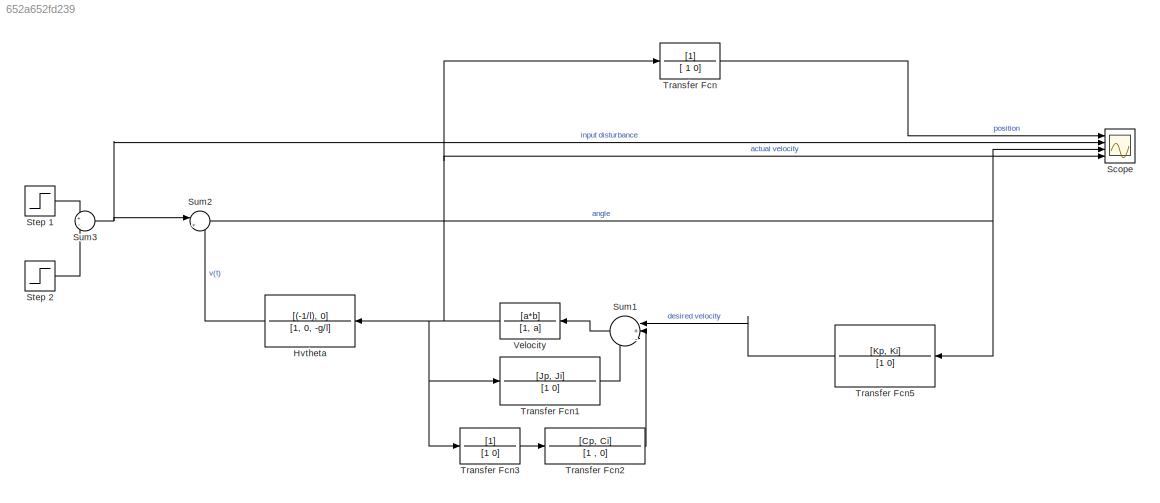
MODEL slx_652a652fd239
KIND model
CONFIG AbsTol = auto
CONFIG EnableMultiTasking = off
CONFIG FixedStep = auto
CONFIG MaxStep = auto
CONFIG MinStep = auto
CONFIG RelTol = 1e-3
CONFIG SampleTimeConstraint = Unconstrained
CONFIG SolverName = VariableStepAuto
CONFIG StartTime = 0.0
CONFIG StopTime = 10.0
BLOCK [TransferFcn] Hvtheta
  Denominator = [1, 0, -g/l]
  Numerator = [(-1/l), 0]
BLOCK [Scope] Scope
  Floating = off
  NumInputPorts = 4
  Ports = [4]
  ScopeSpecificationString = Simulink.scopes.TimeScopeBlockCfg('CurrentConfiguration', extmgr.ConfigurationSet(extmgr.Configuration('Core','General UI',true),extmgr.Configuration('Core','Source UI',true),extmgr.Configuration('Sources','WiredSimulink',true),extmgr.Configuration('Visuals','Time Domain',true,'SerializedDisplays',{struct('MinYLimReal','-13209881907.34811','MaxYLimReal','1467764667.9664','YLabelReal','','MinYLimMa...<+1565ch>
BLOCK [Step] Step 1
  SampleTime = 0
  Time = 0.025
BLOCK [Step] Step 2
  After = -1
  SampleTime = 0
  Time = 0.050
BLOCK [Sum] Sum1
  Inputs = |+--
  Ports = [3, 1]
BLOCK [Sum] Sum2
  Inputs = |++
  Ports = [2, 1]
BLOCK [Sum] Sum3
  Inputs = +-
  Ports = [2, 1]
BLOCK [TransferFcn] Transfer Fcn
  Denominator = [ 1 0]
BLOCK [TransferFcn] Transfer Fcn1
  Denominator = [1 0]
  Numerator = [Jp, Ji]
BLOCK [TransferFcn] Transfer Fcn2
  Denominator = [1 , 0]
  Numerator = [Cp, Ci]
BLOCK [TransferFcn] Transfer Fcn3
  Denominator = [1 0]
BLOCK [TransferFcn] Transfer Fcn5
  Denominator = [1 0]
  Numerator = [Kp, Ki]
BLOCK [TransferFcn] Velocity
  Denominator = [1, a]
  Numerator = [a*b]
LINE Hvtheta:1 -> Sum2:2
LINE Step 1:1 -> Sum3:1
LINE Step 2:1 -> Sum3:2
LINE Sum1:1 -> Velocity:1
NET Sum2:1 -> Scope:3, Transfer Fcn5:1
NET Sum3:1 -> Scope:2, Sum2:1
LINE Transfer Fcn1:1 -> Sum1:3
LINE Transfer Fcn2:1 -> Sum1:2
LINE Transfer Fcn3:1 -> Transfer Fcn2:1
LINE Transfer Fcn5:1 -> Sum1:1
LINE Transfer Fcn:1 -> Scope:1
NET Velocity:1 -> Hvtheta:1, Scope:4, Transfer Fcn1:1, Transfer Fcn3:1, Transfer Fcn:1
note: NET lines group one-source signal fan-out (src -> all destinations, sorted); 1:1 wires keep LINE
